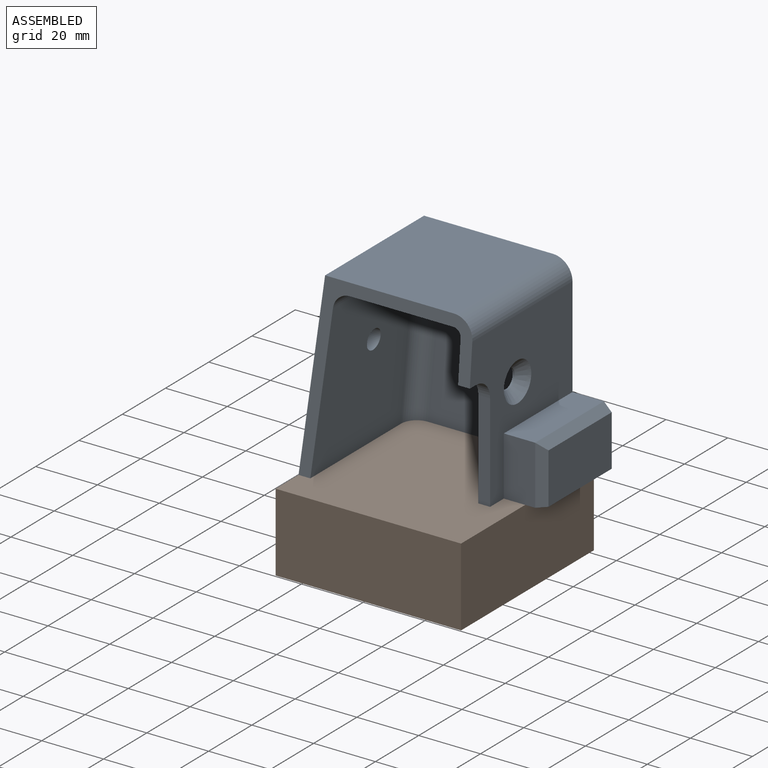
[diagram: assembled view]
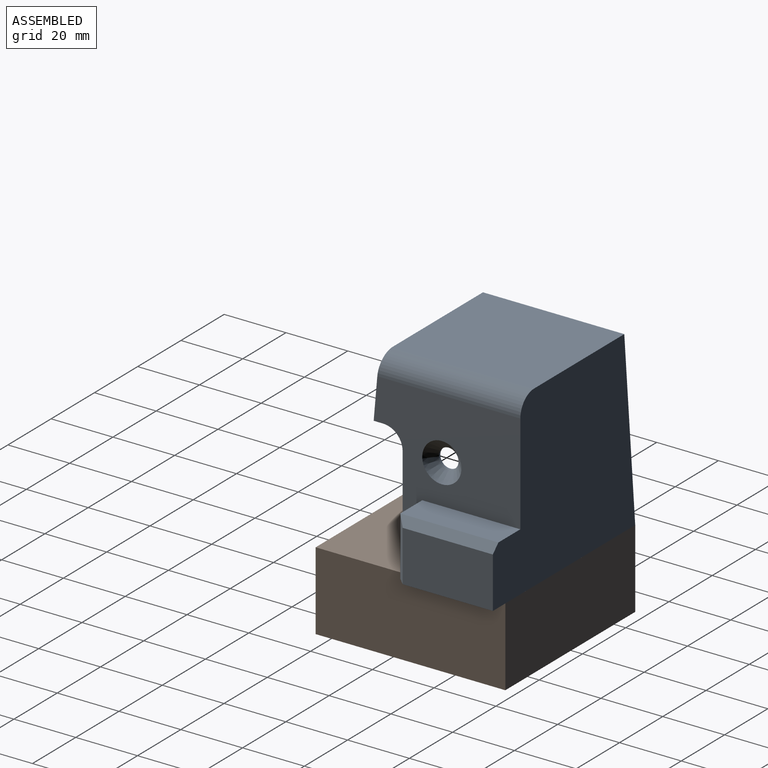
[diagram: assembled view, second angle]
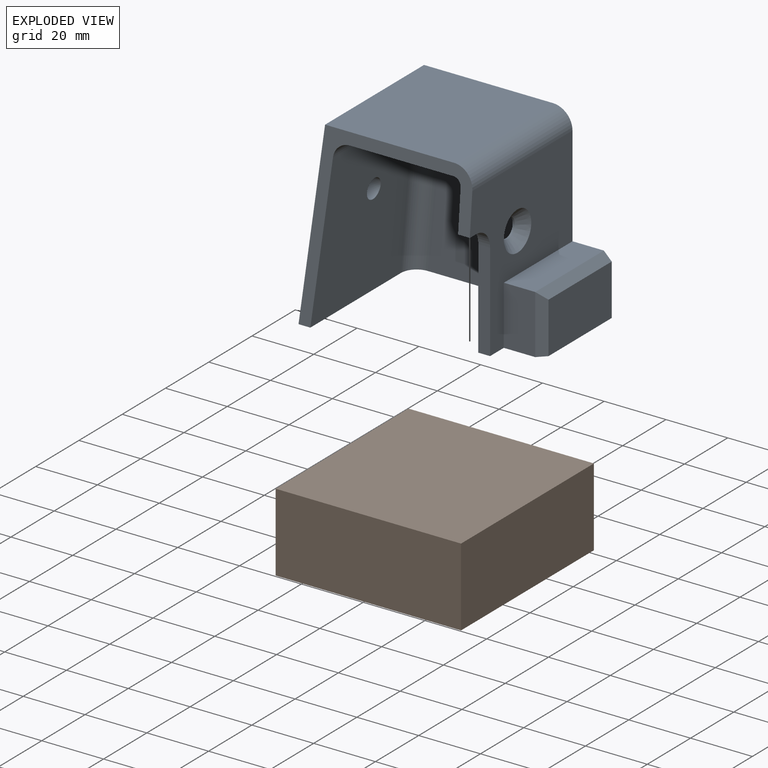
[diagram: exploded view]
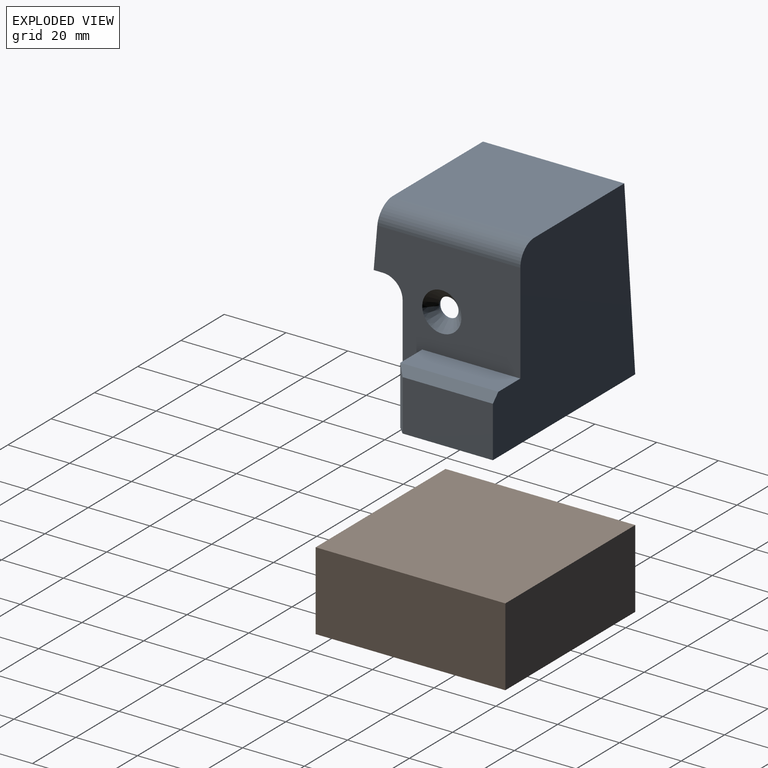
[diagram: exploded view, second angle]
ASSEMBLY  parts=2 mates=2
PART A: 29 faces, bbox 65.8x50.8x58.2 mm
  f0: plane 65.81x50.8mm, normal (0,0,-1), area 923.8mm2, adj f1,f2,f3,f4,f7,f8,f11,f12
  f1: plane 51.44x38.58mm, normal (-1,0,0), area 1596.7mm2, adj f0,f2,f9,f17,f18,f26,f27,f28
  f2: plane 57.79x53.11mm, normal (0,-1,0.09), area 449.6mm2, adj f0,f1,f3,f4,f5,f6,f8,f9
  f3: plane 57.79x50.8mm, normal (-1,0,0.09), area 2768.5mm2, adj f0,f2,f6,f7,f20
  f4: plane 51.44x47.47mm, normal (1,0,0), area 1354.2mm2, adj f0,f2,f5,f7,f19,f21,f22,f26
  f5: cylinder r=6.35mm len=46.3mm, axis (0,1,0), area 458.3mm2, adj f2,f4,f6,f7
  f6: plane 45.74x41.71mm, normal (0,0,1), area 1907.9mm2, adj f2,f3,f5,f7
  f7: plane 65.81x57.79mm, normal (0,1,0), area 3153.4mm2, adj f0,f3,f4,f5,f6,f21,f23,f24
  f8: plane 49.34x41.91mm, normal (1,0,-0.09), area 1937.2mm2, adj f0,f2,f12,f13,f20
  f9: cylinder r=2.54mm len=37.41mm, axis (0,1,0), area 148.7mm2, adj f1,f2,f10,f16
  f10: plane 37.19x33.56mm, normal (0,0,-1), area 1248.1mm2, adj f2,f9,f13,f15
  f11: plane 48.9x35.3mm, normal (0,-1,0), area 1621.6mm2, adj f0,f12,f15,f17
  f12: cylinder r=5.08mm len=49.79mm, axis (0.09,0,1), area 394mm2, adj f0,f8,f11,f14
  f13: cylinder r=5.08mm len=37.59mm, axis (0,-1,0), area 281.4mm2, adj f2,f8,f10,f14
  f14: sphere r=5.08mm, area 38.3mm2, adj f12,f13,f15
  f15: cylinder r=5.08mm len=33.56mm, axis (1,0,0), area 260.4mm2, adj f10,f11,f14,f16
  f16: bspline ~6.07x5.08mm, area 21.3mm2, adj f9,f15,f17
  f17: cylinder r=5.08mm len=51.44mm, axis (0,0,-1), area 403.1mm2, adj f0,f1,f11,f16
  f18: cylinder r=3.17mm len=6.35mm, axis (1,0,0), area 12.7mm2, adj f1,f19
  f19: cone r=3.17mm half-angle=45deg, axis (1,0,0), area 134.4mm2, adj f4,f18
  f20: cylinder r=3.17mm len=6.35mm, axis (1,0,0), area 76.3mm2, adj f3,f8
  f21: plane 31.75x10.16mm, normal (0,0,1), area 322.6mm2, adj f4,f7,f22,f24
  f22: plane 19.05x10.16mm, normal (0,-1,0), area 193.5mm2, adj f0,f4,f21,f25
  f23: plane 29.21x16.51mm, normal (1,0,0), area 482.3mm2, adj f0,f7,f24,f25
  f24: plane 31.75x2.54mm, normal (0.71,0,0.71), area 109.5mm2, adj f7,f21,f23,f25
  f25: plane 19.05x2.54mm, normal (0.71,-0.71,0), area 63.9mm2, adj f0,f22,f23,f24
  f26: plane 31.75x3.81mm, normal (0,-1,0), area 121mm2, adj f0,f1,f4,f28
  f27: plane 3.81x3.02mm, normal (0,0,-1), area 11.5mm2, adj f1,f2,f4,f28
  f28: cylinder r=6.35mm len=6.35mm, axis (1,0,0), area 38mm2, adj f1,f4,f26,f27
PART B: 6 faces, bbox 60x61.4x25.4 mm
  f0: plane 60.04x25.4mm, normal (0,1,0), area 1525mm2, adj f1,f3,f4,f5
  f1: plane 61.4x25.4mm, normal (-1,0,0), area 1559.6mm2, adj f0,f2,f4,f5
  f2: plane 60.04x25.4mm, normal (0,-1,0), area 1525mm2, adj f1,f3,f4,f5
  f3: plane 61.4x25.4mm, normal (1,0,0), area 1559.6mm2, adj f0,f2,f4,f5
  f4: plane 61.4x60.04mm, normal (0,0,-1), area 3686.4mm2, adj f0,f1,f2,f3
  f5: plane 61.4x60.04mm, normal (0,0,1), area 3686.4mm2, adj f0,f1,f2,f3
PLACE A t=(-6.38,-1.38,-0.34)mm fixed
PLACE B rot(axis=(0,0,1),0deg) t=(-6.38,-1.38,-0.34)mm
MATE planar A.f7 <-> B.f0  axis (0,1,0) through (23.74,-1.38,26.55)mm
MATE planar B.f5 <-> A.f0  axis (0,0,1) through (53.66,-62.78,-0.34)mm
